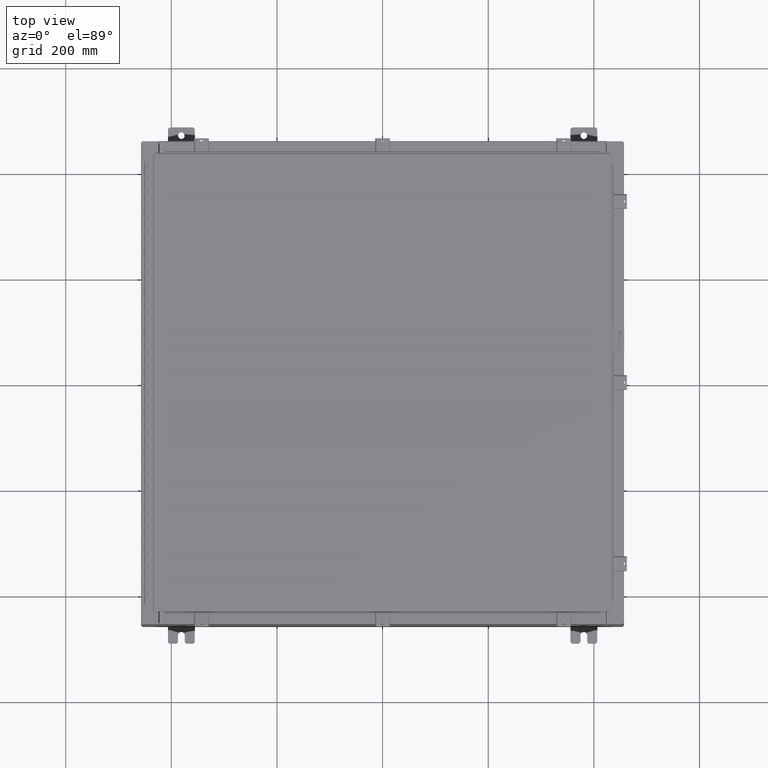
[diagram: clean part render]
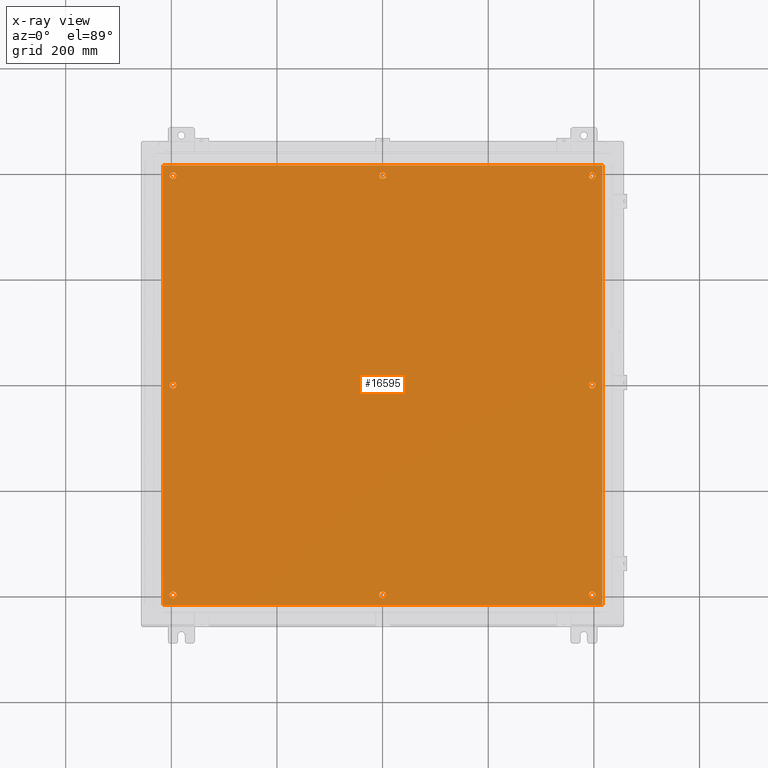
[diagram: x-ray — body ghosted, one internal face saturated and labeled with its STEP entity id]
A machine part, top view, then the same camera in x-ray: the body is ghosted and one INTERNAL B-rep face — a face not visible from any outside direction — is saturated and labeled: STEP entity #16595.
In plain terms, the highlighted planar face has unit normal (0, 0, -1).
Its self-contained STEP definition (entity closure, byte-faithful):
#633 = EDGE_CURVE ( 'NONE', #8253, #26917, #28323, .T. ) ;
#785 = EDGE_CURVE ( 'NONE', #32765, #42594, #38079, .T. ) ;
#981 = EDGE_CURVE ( 'NONE', #8629, #5625, #42952, .T. ) ;
#1137 = VERTEX_POINT ( 'NONE', #38734 ) ;
#2389 = EDGE_CURVE ( 'NONE', #38041, #6198, #5892, .T. ) ;
#2566 = AXIS2_PLACEMENT_3D ( 'NONE', #29377, #8585, #32881 ) ;
#2624 = CARTESIAN_POINT ( 'NONE',  ( 15.87500000000000500, 1.904397164657816300E-015, -0.1039999999999999800 ) ) ;
#2765 = CARTESIAN_POINT ( 'NONE',  ( 15.62500000000000400, 1.904397164657816300E-015, -0.1039999999999999800 ) ) ;
#3100 = VERTEX_POINT ( 'NONE', #2624 ) ;
#3115 = VECTOR ( 'NONE', #28999, 39.37007874015748100 ) ;
#3875 = CIRCLE ( 'NONE', #39106, 0.2500000000000008900 ) ;
#4439 = CARTESIAN_POINT ( 'NONE',  ( -16.38299999999999900, 16.38300000000000300, -0.1040000000000009100 ) ) ;
#5139 = FACE_BOUND ( 'NONE', #11394, .T. ) ;
#5172 = DIRECTION ( 'NONE',  ( -0.0000000000000000000, -0.0000000000000000000, 1.000000000000000000 ) ) ;
#5249 = AXIS2_PLACEMENT_3D ( 'NONE', #29867, #33371, #12594 ) ;
#5407 = DIRECTION ( 'NONE',  ( -1.000000000000000000, 0.0000000000000000000, 0.0000000000000000000 ) ) ;
#5625 = VERTEX_POINT ( 'NONE', #26792 ) ;
#5892 = CIRCLE ( 'NONE', #40155, 0.2500000000000011700 ) ;
#6198 = VERTEX_POINT ( 'NONE', #35730 ) ;
#6237 = FACE_BOUND ( 'NONE', #38411, .T. ) ;
#6294 = DIRECTION ( 'NONE',  ( -1.000000000000000000, 0.0000000000000000000, 0.0000000000000000000 ) ) ;
#6308 = VERTEX_POINT ( 'NONE', #15853 ) ;
#6758 = DIRECTION ( 'NONE',  ( -0.0000000000000000000, -0.0000000000000000000, 1.000000000000000000 ) ) ;
#7003 = LINE ( 'NONE', #19917, #16273 ) ;
#7237 = AXIS2_PLACEMENT_3D ( 'NONE', #31947, #29999, #5407 ) ;
#7616 = VERTEX_POINT ( 'NONE', #9849 ) ;
#8253 = VERTEX_POINT ( 'NONE', #35916 ) ;
#8585 = DIRECTION ( 'NONE',  ( -0.0000000000000000000, -0.0000000000000000000, 1.000000000000000000 ) ) ;
#8604 = VERTEX_POINT ( 'NONE', #13044 ) ;
#8629 = VERTEX_POINT ( 'NONE', #36658 ) ;
#8678 = VERTEX_POINT ( 'NONE', #16167 ) ;
#8918 = ORIENTED_EDGE ( 'NONE', *, *, #17241, .T. ) ;
#9443 = EDGE_CURVE ( 'NONE', #26917, #8253, #10512, .T. ) ;
#9758 = ORIENTED_EDGE ( 'NONE', *, *, #13975, .T. ) ;
#9849 = CARTESIAN_POINT ( 'NONE',  ( -16.38299999999999900, -16.38299999999999600, -0.1039999999999998100 ) ) ;
#10234 = ORIENTED_EDGE ( 'NONE', *, *, #25461, .T. ) ;
#10254 = CIRCLE ( 'NONE', #38907, 0.2499999999999987000 ) ;
#10277 = EDGE_CURVE ( 'NONE', #23077, #7616, #44651, .T. ) ;
#10512 = CIRCLE ( 'NONE', #36474, 0.2499999999999998600 ) ;
#10725 = ORIENTED_EDGE ( 'NONE', *, *, #14132, .F. ) ;
#10953 = CARTESIAN_POINT ( 'NONE',  ( 0.0000000000000000000, -15.62500000000000400, -0.1039999999999999800 ) ) ;
#11140 = AXIS2_PLACEMENT_3D ( 'NONE', #2765, #27094, #6294 ) ;
#11196 = EDGE_LOOP ( 'NONE', ( #9758, #21854 ) ) ;
#11394 = EDGE_LOOP ( 'NONE', ( #37236, #25587 ) ) ;
#12179 = ORIENTED_EDGE ( 'NONE', *, *, #981, .T. ) ;
#12594 = DIRECTION ( 'NONE',  ( -1.000000000000000000, 0.0000000000000000000, -0.0000000000000000000 ) ) ;
#13044 = CARTESIAN_POINT ( 'NONE',  ( 16.38299999999999900, -16.38299999999999600, -0.1040000000000009100 ) ) ;
#13695 = EDGE_CURVE ( 'NONE', #18071, #6308, #10254, .T. ) ;
#13936 = CARTESIAN_POINT ( 'NONE',  ( -15.62500000000000400, -1.922624082677663000E-015, -0.1039999999999999800 ) ) ;
#13975 = EDGE_CURVE ( 'NONE', #6198, #38041, #35195, .T. ) ;
#14034 = CARTESIAN_POINT ( 'NONE',  ( 15.62500000000000400, 1.904397164657816300E-015, -0.1039999999999999800 ) ) ;
#14132 = EDGE_CURVE ( 'NONE', #1137, #23077, #21639, .T. ) ;
#14408 = FACE_BOUND ( 'NONE', #41361, .T. ) ;
#14452 = DIRECTION ( 'NONE',  ( -1.000000000000000000, 0.0000000000000000000, 0.0000000000000000000 ) ) ;
#14607 = CARTESIAN_POINT ( 'NONE',  ( 15.62500000000000400, 15.62500000000000400, -0.1039999999999999800 ) ) ;
#15236 = EDGE_CURVE ( 'NONE', #6308, #18071, #23785, .T. ) ;
#15319 = CIRCLE ( 'NONE', #34318, 0.2499999999999987000 ) ;
#15510 = FACE_BOUND ( 'NONE', #32121, .T. ) ;
#15704 = CARTESIAN_POINT ( 'NONE',  ( -15.37500000000000500, -15.62500000000000400, -0.1039999999999999800 ) ) ;
#15743 = DIRECTION ( 'NONE',  ( -0.0000000000000000000, -0.0000000000000000000, 1.000000000000000000 ) ) ;
#15853 = CARTESIAN_POINT ( 'NONE',  ( -15.87500000000000200, -15.62500000000000400, -0.1039999999999999800 ) ) ;
#15908 = VECTOR ( 'NONE', #28751, 39.37007874015748100 ) ;
#16167 = CARTESIAN_POINT ( 'NONE',  ( -15.87500000000000500, -1.892007912698979300E-015, -0.1039999999999999800 ) ) ;
#16229 = CARTESIAN_POINT ( 'NONE',  ( -15.37500000000000400, -1.922624082677663000E-015, -0.1039999999999999800 ) ) ;
#16273 = VECTOR ( 'NONE', #23414, 39.37007874015748100 ) ;
#16595 = ADVANCED_FACE ( 'NONE', ( #42081, #6237, #32874, #23652, #27970, #15510, #14408, #5139, #41001 ), #36716, .T. ) ;
#16737 = DIRECTION ( 'NONE',  ( -0.0000000000000000000, -0.0000000000000000000, 1.000000000000000000 ) ) ;
#16758 = EDGE_LOOP ( 'NONE', ( #22294, #23464 ) ) ;
#17241 = EDGE_CURVE ( 'NONE', #8678, #21742, #28458, .T. ) ;
#17358 = ORIENTED_EDGE ( 'NONE', *, *, #17650, .T. ) ;
#17421 = DIRECTION ( 'NONE',  ( -1.000000000000000000, 0.0000000000000000000, 0.0000000000000000000 ) ) ;
#17428 = AXIS2_PLACEMENT_3D ( 'NONE', #29699, #6758, #30160 ) ;
#17528 = DIRECTION ( 'NONE',  ( -1.000000000000000000, 0.0000000000000000000, 0.0000000000000000000 ) ) ;
#17650 = EDGE_CURVE ( 'NONE', #20957, #3100, #41991, .T. ) ;
#18071 = VERTEX_POINT ( 'NONE', #15704 ) ;
#18108 = DIRECTION ( 'NONE',  ( -1.000000000000000000, 0.0000000000000000000, 0.0000000000000000000 ) ) ;
#18813 = DIRECTION ( 'NONE',  ( -0.0000000000000000000, -0.0000000000000000000, 1.000000000000000000 ) ) ;
#18913 = CARTESIAN_POINT ( 'NONE',  ( -15.62500000000000400, -1.922624082677663000E-015, -0.1039999999999999800 ) ) ;
#19117 = EDGE_CURVE ( 'NONE', #42594, #32765, #3875, .T. ) ;
#19789 = DIRECTION ( 'NONE',  ( -0.0000000000000000000, -0.0000000000000000000, 1.000000000000000000 ) ) ;
#19917 = CARTESIAN_POINT ( 'NONE',  ( -16.50000000000000000, -16.38299999999999600, -0.1039999999999998100 ) ) ;
#20055 = CARTESIAN_POINT ( 'NONE',  ( 0.0000000000000000000, 15.62500000000000400, -0.1039999999999999800 ) ) ;
#20770 = AXIS2_PLACEMENT_3D ( 'NONE', #14034, #38310, #17528 ) ;
#20957 = VERTEX_POINT ( 'NONE', #32663 ) ;
#21639 = LINE ( 'NONE', #42946, #3115 ) ;
#21742 = VERTEX_POINT ( 'NONE', #16229 ) ;
#21854 = ORIENTED_EDGE ( 'NONE', *, *, #2389, .T. ) ;
#21977 = CARTESIAN_POINT ( 'NONE',  ( -0.2499999999999998600, 15.62500000000000400, -0.1039999999999999800 ) ) ;
#22019 = CARTESIAN_POINT ( 'NONE',  ( 15.87500000000000200, 15.62500000000000400, -0.1039999999999999800 ) ) ;
#22294 = ORIENTED_EDGE ( 'NONE', *, *, #13695, .T. ) ;
#22426 = DIRECTION ( 'NONE',  ( -1.000000000000000000, 0.0000000000000000000, 0.0000000000000000000 ) ) ;
#23077 = VERTEX_POINT ( 'NONE', #24672 ) ;
#23414 = DIRECTION ( 'NONE',  ( 1.000000000000000000, -0.0000000000000000000, -0.0000000000000000000 ) ) ;
#23464 = ORIENTED_EDGE ( 'NONE', *, *, #15236, .T. ) ;
#23488 = EDGE_CURVE ( 'NONE', #35018, #30258, #39366, .T. ) ;
#23545 = DIRECTION ( 'NONE',  ( -1.000000000000000000, 0.0000000000000000000, 0.0000000000000000000 ) ) ;
#23652 = FACE_BOUND ( 'NONE', #34031, .T. ) ;
#23785 = CIRCLE ( 'NONE', #2566, 0.2499999999999987000 ) ;
#24071 = CARTESIAN_POINT ( 'NONE',  ( -15.87500000000000700, 15.62500000000000400, -0.1039999999999999800 ) ) ;
#24297 = ORIENTED_EDGE ( 'NONE', *, *, #26984, .T. ) ;
#24341 = DIRECTION ( 'NONE',  ( -0.0000000000000000000, -0.0000000000000000000, 1.000000000000000000 ) ) ;
#24672 = CARTESIAN_POINT ( 'NONE',  ( -16.38299999999999900, 16.38300000000000300, -0.1040000000000009100 ) ) ;
#24966 = EDGE_CURVE ( 'NONE', #8604, #1137, #44110, .T. ) ;
#25461 = EDGE_CURVE ( 'NONE', #3100, #20957, #27176, .T. ) ;
#25587 = ORIENTED_EDGE ( 'NONE', *, *, #785, .T. ) ;
#25992 = CARTESIAN_POINT ( 'NONE',  ( 15.62500000000000400, -15.62500000000000400, -0.1039999999999999800 ) ) ;
#26299 = VECTOR ( 'NONE', #39977, 39.37007874015748100 ) ;
#26792 = CARTESIAN_POINT ( 'NONE',  ( 15.37500000000000500, -15.62500000000000400, -0.1039999999999999800 ) ) ;
#26832 = CARTESIAN_POINT ( 'NONE',  ( -0.2500000000000011700, -15.62500000000000400, -0.1039999999999999800 ) ) ;
#26917 = VERTEX_POINT ( 'NONE', #21977 ) ;
#26984 = EDGE_CURVE ( 'NONE', #21742, #8678, #42235, .T. ) ;
#27094 = DIRECTION ( 'NONE',  ( -0.0000000000000000000, -0.0000000000000000000, 1.000000000000000000 ) ) ;
#27176 = CIRCLE ( 'NONE', #20770, 0.2500000000000008900 ) ;
#27970 = FACE_BOUND ( 'NONE', #16758, .T. ) ;
#28323 = CIRCLE ( 'NONE', #34577, 0.2499999999999998600 ) ;
#28458 = CIRCLE ( 'NONE', #33795, 0.2500000000000008900 ) ;
#28751 = DIRECTION ( 'NONE',  ( 0.0000000000000000000, -1.000000000000000000, 0.0000000000000000000 ) ) ;
#28999 = DIRECTION ( 'NONE',  ( -1.000000000000000000, -0.0000000000000000000, -0.0000000000000000000 ) ) ;
#29377 = CARTESIAN_POINT ( 'NONE',  ( -15.62500000000000400, -15.62500000000000400, -0.1039999999999999800 ) ) ;
#29480 = DIRECTION ( 'NONE',  ( -1.000000000000000000, 0.0000000000000000000, 0.0000000000000000000 ) ) ;
#29699 = CARTESIAN_POINT ( 'NONE',  ( -15.62500000000000500, 15.62500000000000400, -0.1039999999999999800 ) ) ;
#29867 = CARTESIAN_POINT ( 'NONE',  ( 0.0000000000000000000, 0.0000000000000000000, -0.1039999999999999800 ) ) ;
#29999 = DIRECTION ( 'NONE',  ( -0.0000000000000000000, -0.0000000000000000000, 1.000000000000000000 ) ) ;
#30160 = DIRECTION ( 'NONE',  ( -1.000000000000000000, 0.0000000000000000000, 0.0000000000000000000 ) ) ;
#30258 = VERTEX_POINT ( 'NONE', #39399 ) ;
#31475 = EDGE_CURVE ( 'NONE', #5625, #8629, #15319, .T. ) ;
#31947 = CARTESIAN_POINT ( 'NONE',  ( 15.62500000000000400, -15.62500000000000400, -0.1039999999999999800 ) ) ;
#32121 = EDGE_LOOP ( 'NONE', ( #12179, #44563 ) ) ;
#32217 = ORIENTED_EDGE ( 'NONE', *, *, #633, .T. ) ;
#32663 = CARTESIAN_POINT ( 'NONE',  ( 15.37500000000000400, 1.935013334636500000E-015, -0.1039999999999999800 ) ) ;
#32765 = VERTEX_POINT ( 'NONE', #24071 ) ;
#32829 = CARTESIAN_POINT ( 'NONE',  ( 0.0000000000000000000, 15.62500000000000400, -0.1039999999999999800 ) ) ;
#32874 = FACE_BOUND ( 'NONE', #41102, .T. ) ;
#32881 = DIRECTION ( 'NONE',  ( -1.000000000000000000, 0.0000000000000000000, 0.0000000000000000000 ) ) ;
#33371 = DIRECTION ( 'NONE',  ( 0.0000000000000000000, 0.0000000000000000000, -1.000000000000000000 ) ) ;
#33795 = AXIS2_PLACEMENT_3D ( 'NONE', #13936, #38199, #17421 ) ;
#34031 = EDGE_LOOP ( 'NONE', ( #24297, #8918 ) ) ;
#34318 = AXIS2_PLACEMENT_3D ( 'NONE', #25992, #5172, #29480 ) ;
#34577 = AXIS2_PLACEMENT_3D ( 'NONE', #32829, #24341, #41894 ) ;
#34598 = EDGE_CURVE ( 'NONE', #7616, #8604, #7003, .T. ) ;
#35018 = VERTEX_POINT ( 'NONE', #22019 ) ;
#35195 = CIRCLE ( 'NONE', #40388, 0.2500000000000011700 ) ;
#35227 = DIRECTION ( 'NONE',  ( -0.0000000000000000000, -0.0000000000000000000, 1.000000000000000000 ) ) ;
#35730 = CARTESIAN_POINT ( 'NONE',  ( 0.2500000000000011700, -15.62500000000000400, -0.1039999999999999800 ) ) ;
#35916 = CARTESIAN_POINT ( 'NONE',  ( 0.2499999999999998600, 15.62500000000000400, -0.1039999999999999800 ) ) ;
#36474 = AXIS2_PLACEMENT_3D ( 'NONE', #20055, #44309, #23545 ) ;
#36527 = CARTESIAN_POINT ( 'NONE',  ( -15.62500000000000500, 15.62500000000000400, -0.1039999999999999800 ) ) ;
#36577 = ORIENTED_EDGE ( 'NONE', *, *, #24966, .F. ) ;
#36651 = CARTESIAN_POINT ( 'NONE',  ( 16.38299999999999900, -16.38299999999999600, -0.1040000000000009100 ) ) ;
#36658 = CARTESIAN_POINT ( 'NONE',  ( 15.87500000000000200, -15.62500000000000400, -0.1039999999999999800 ) ) ;
#36716 = PLANE ( 'NONE',  #5249 ) ;
#37236 = ORIENTED_EDGE ( 'NONE', *, *, #19117, .T. ) ;
#37514 = CARTESIAN_POINT ( 'NONE',  ( 15.62500000000000400, 15.62500000000000400, -0.1039999999999999800 ) ) ;
#37621 = ORIENTED_EDGE ( 'NONE', *, *, #9443, .T. ) ;
#38041 = VERTEX_POINT ( 'NONE', #26832 ) ;
#38079 = CIRCLE ( 'NONE', #17428, 0.2500000000000008900 ) ;
#38115 = ORIENTED_EDGE ( 'NONE', *, *, #34598, .F. ) ;
#38199 = DIRECTION ( 'NONE',  ( -0.0000000000000000000, -0.0000000000000000000, 1.000000000000000000 ) ) ;
#38310 = DIRECTION ( 'NONE',  ( -0.0000000000000000000, -0.0000000000000000000, 1.000000000000000000 ) ) ;
#38411 = EDGE_LOOP ( 'NONE', ( #32217, #37621 ) ) ;
#38734 = CARTESIAN_POINT ( 'NONE',  ( 16.38299999999999900, 16.38300000000000300, -0.1040000000000009100 ) ) ;
#38859 = DIRECTION ( 'NONE',  ( -0.0000000000000000000, -0.0000000000000000000, 1.000000000000000000 ) ) ;
#38907 = AXIS2_PLACEMENT_3D ( 'NONE', #40573, #19789, #44044 ) ;
#38965 = ORIENTED_EDGE ( 'NONE', *, *, #10277, .F. ) ;
#39106 = AXIS2_PLACEMENT_3D ( 'NONE', #36527, #15743, #40007 ) ;
#39366 = CIRCLE ( 'NONE', #41613, 0.2499999999999987000 ) ;
#39399 = CARTESIAN_POINT ( 'NONE',  ( 15.37500000000000500, 15.62500000000000400, -0.1039999999999999800 ) ) ;
#39437 = DIRECTION ( 'NONE',  ( -1.000000000000000000, 0.0000000000000000000, 0.0000000000000000000 ) ) ;
#39475 = CIRCLE ( 'NONE', #44265, 0.2499999999999987000 ) ;
#39977 = DIRECTION ( 'NONE',  ( 0.0000000000000000000, 1.000000000000000000, 0.0000000000000000000 ) ) ;
#40007 = DIRECTION ( 'NONE',  ( -1.000000000000000000, 0.0000000000000000000, 0.0000000000000000000 ) ) ;
#40072 = CARTESIAN_POINT ( 'NONE',  ( -15.37500000000000500, 15.62500000000000400, -0.1039999999999999800 ) ) ;
#40155 = AXIS2_PLACEMENT_3D ( 'NONE', #43538, #18813, #39437 ) ;
#40388 = AXIS2_PLACEMENT_3D ( 'NONE', #10953, #35227, #14452 ) ;
#40573 = CARTESIAN_POINT ( 'NONE',  ( -15.62500000000000400, -15.62500000000000400, -0.1039999999999999800 ) ) ;
#41001 = FACE_OUTER_BOUND ( 'NONE', #42529, .T. ) ;
#41009 = DIRECTION ( 'NONE',  ( -1.000000000000000000, 0.0000000000000000000, 0.0000000000000000000 ) ) ;
#41102 = EDGE_LOOP ( 'NONE', ( #10234, #17358 ) ) ;
#41253 = ORIENTED_EDGE ( 'NONE', *, *, #23488, .T. ) ;
#41361 = EDGE_LOOP ( 'NONE', ( #41253, #42173 ) ) ;
#41613 = AXIS2_PLACEMENT_3D ( 'NONE', #37514, #16737, #41009 ) ;
#41894 = DIRECTION ( 'NONE',  ( -1.000000000000000000, 0.0000000000000000000, 0.0000000000000000000 ) ) ;
#41991 = CIRCLE ( 'NONE', #11140, 0.2500000000000008900 ) ;
#42003 = AXIS2_PLACEMENT_3D ( 'NONE', #18913, #43183, #22426 ) ;
#42081 = FACE_BOUND ( 'NONE', #11196, .T. ) ;
#42173 = ORIENTED_EDGE ( 'NONE', *, *, #42337, .T. ) ;
#42235 = CIRCLE ( 'NONE', #42003, 0.2500000000000008900 ) ;
#42337 = EDGE_CURVE ( 'NONE', #30258, #35018, #39475, .T. ) ;
#42529 = EDGE_LOOP ( 'NONE', ( #38115, #38965, #10725, #36577 ) ) ;
#42594 = VERTEX_POINT ( 'NONE', #40072 ) ;
#42946 = CARTESIAN_POINT ( 'NONE',  ( 16.50000000000000000, 16.38299999999999900, -0.1040000000000009100 ) ) ;
#42952 = CIRCLE ( 'NONE', #7237, 0.2499999999999987000 ) ;
#43183 = DIRECTION ( 'NONE',  ( -0.0000000000000000000, -0.0000000000000000000, 1.000000000000000000 ) ) ;
#43538 = CARTESIAN_POINT ( 'NONE',  ( 0.0000000000000000000, -15.62500000000000400, -0.1039999999999999800 ) ) ;
#44044 = DIRECTION ( 'NONE',  ( -1.000000000000000000, 0.0000000000000000000, 0.0000000000000000000 ) ) ;
#44110 = LINE ( 'NONE', #36651, #26299 ) ;
#44265 = AXIS2_PLACEMENT_3D ( 'NONE', #14607, #38859, #18108 ) ;
#44309 = DIRECTION ( 'NONE',  ( -0.0000000000000000000, -0.0000000000000000000, 1.000000000000000000 ) ) ;
#44563 = ORIENTED_EDGE ( 'NONE', *, *, #31475, .T. ) ;
#44651 = LINE ( 'NONE', #4439, #15908 ) ;